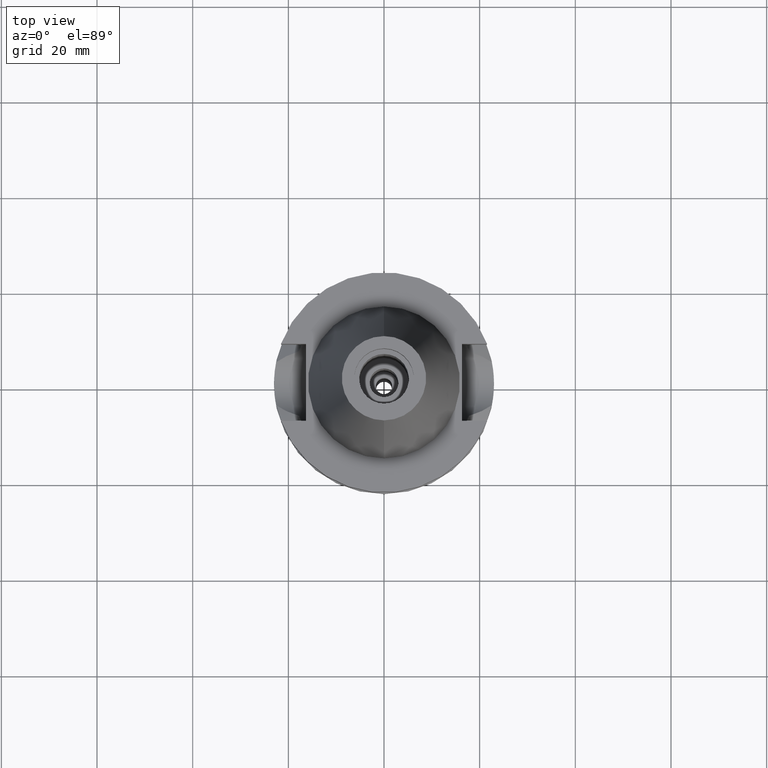
[diagram: clean part render]
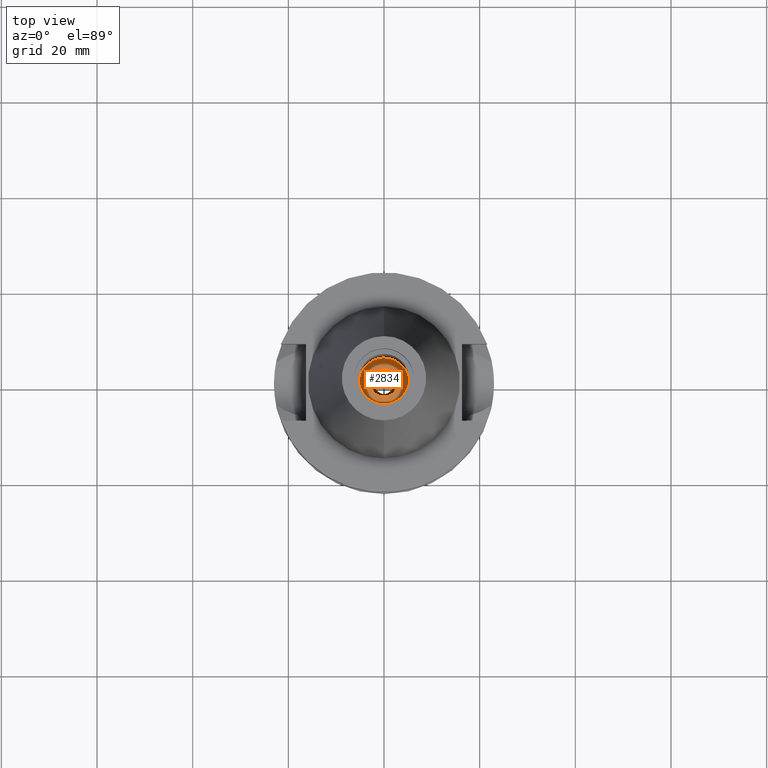
[diagram: same view with one face highlighted and labeled with its STEP entity id]
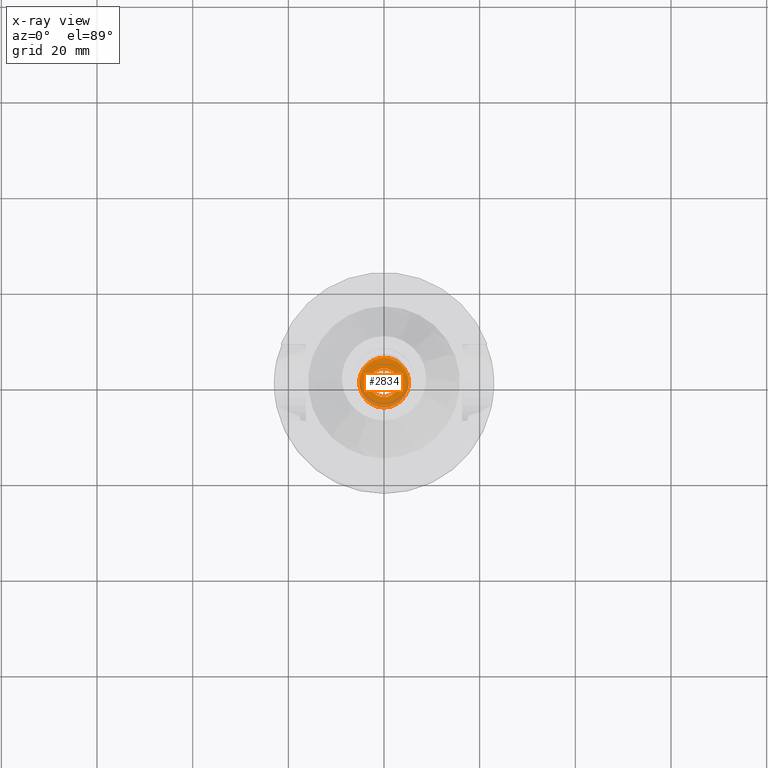
[diagram: x-ray of the same camera — body ghosted, the highlighted face saturated]
A machine part, top view. The second image highlights one B-rep face of the part: STEP entity #2834.
The next image is the same camera in x-ray: the body ghosted, the highlighted face saturated — about 15% of this face is hidden behind the body in this view.
In plain terms, the highlighted planar face has unit normal (0, 0, -1).
Its self-contained STEP definition (entity closure, byte-faithful):
#1 = ORIENTED_EDGE ( 'NONE', *, *, #1174, .F. ) ;
#12 = CIRCLE ( 'NONE', #736, 3.000000000000000000 ) ;
#42 = VERTEX_POINT ( 'NONE', #467 ) ;
#104 = CIRCLE ( 'NONE', #1768, 5.200000000000000178 ) ;
#115 = VERTEX_POINT ( 'NONE', #1660 ) ;
#217 = DIRECTION ( 'NONE',  ( 0.0000000000000000000, 1.000000000000000000, 0.0000000000000000000 ) ) ;
#233 = DIRECTION ( 'NONE',  ( 0.0000000000000000000, -1.000000000000000000, 0.0000000000000000000 ) ) ;
#250 = AXIS2_PLACEMENT_3D ( 'NONE', #1837, #915, #1869 ) ;
#263 = DIRECTION ( 'NONE',  ( 0.0000000000000000000, 0.0000000000000000000, 1.000000000000000000 ) ) ;
#265 = EDGE_CURVE ( 'NONE', #115, #1786, #104, .T. ) ;
#467 = CARTESIAN_POINT ( 'NONE',  ( 0.0000000000000000000, -3.000000000000000000, -6.599999999999999645 ) ) ;
#533 = CIRCLE ( 'NONE', #1004, 5.200000000000000178 ) ;
#705 = FACE_BOUND ( 'NONE', #1366, .T. ) ;
#736 = AXIS2_PLACEMENT_3D ( 'NONE', #942, #1402, #233 ) ;
#761 = DIRECTION ( 'NONE',  ( 0.0000000000000000000, 0.0000000000000000000, -1.000000000000000000 ) ) ;
#911 = AXIS2_PLACEMENT_3D ( 'NONE', #2718, #263, #217 ) ;
#915 = DIRECTION ( 'NONE',  ( 0.0000000000000000000, 0.0000000000000000000, -1.000000000000000000 ) ) ;
#942 = CARTESIAN_POINT ( 'NONE',  ( 0.0000000000000000000, 1.899855811856999906E-14, -6.599999999999999645 ) ) ;
#986 = DIRECTION ( 'NONE',  ( 0.0000000000000000000, 1.000000000000000000, 0.0000000000000000000 ) ) ;
#1004 = AXIS2_PLACEMENT_3D ( 'NONE', #1428, #2341, #986 ) ;
#1055 = CARTESIAN_POINT ( 'NONE',  ( 0.0000000000000000000, 3.000000000000000000, -6.599999999999999645 ) ) ;
#1174 = EDGE_CURVE ( 'NONE', #1589, #42, #2796, .T. ) ;
#1179 = EDGE_LOOP ( 'NONE', ( #2467, #1618 ) ) ;
#1315 = ORIENTED_EDGE ( 'NONE', *, *, #2916, .F. ) ;
#1366 = EDGE_LOOP ( 'NONE', ( #1, #1315 ) ) ;
#1402 = DIRECTION ( 'NONE',  ( 0.0000000000000000000, 0.0000000000000000000, 1.000000000000000000 ) ) ;
#1416 = EDGE_CURVE ( 'NONE', #1786, #115, #533, .T. ) ;
#1428 = CARTESIAN_POINT ( 'NONE',  ( 0.0000000000000000000, 1.899855811856999906E-14, -6.599999999999999645 ) ) ;
#1589 = VERTEX_POINT ( 'NONE', #1055 ) ;
#1618 = ORIENTED_EDGE ( 'NONE', *, *, #265, .F. ) ;
#1660 = CARTESIAN_POINT ( 'NONE',  ( 0.0000000000000000000, -5.200000000000000178, -6.599999999999999645 ) ) ;
#1768 = AXIS2_PLACEMENT_3D ( 'NONE', #1881, #761, #2771 ) ;
#1786 = VERTEX_POINT ( 'NONE', #1809 ) ;
#1802 = FACE_OUTER_BOUND ( 'NONE', #1179, .T. ) ;
#1809 = CARTESIAN_POINT ( 'NONE',  ( 0.0000000000000000000, 5.200000000000000178, -6.599999999999999645 ) ) ;
#1837 = CARTESIAN_POINT ( 'NONE',  ( 0.0000000000000000000, 1.143820110403999983E-14, -6.599999999999999645 ) ) ;
#1869 = DIRECTION ( 'NONE',  ( 0.0000000000000000000, -1.000000000000000000, 0.0000000000000000000 ) ) ;
#1881 = CARTESIAN_POINT ( 'NONE',  ( 0.0000000000000000000, 1.899855811856999906E-14, -6.599999999999999645 ) ) ;
#2341 = DIRECTION ( 'NONE',  ( 0.0000000000000000000, 0.0000000000000000000, -1.000000000000000000 ) ) ;
#2467 = ORIENTED_EDGE ( 'NONE', *, *, #1416, .F. ) ;
#2718 = CARTESIAN_POINT ( 'NONE',  ( 0.0000000000000000000, 1.899855811856999906E-14, -6.599999999999999645 ) ) ;
#2771 = DIRECTION ( 'NONE',  ( 0.0000000000000000000, -1.000000000000000000, 0.0000000000000000000 ) ) ;
#2796 = CIRCLE ( 'NONE', #911, 3.000000000000000000 ) ;
#2834 = ADVANCED_FACE ( 'NONE', ( #1802, #705 ), #2936, .F. ) ;
#2916 = EDGE_CURVE ( 'NONE', #42, #1589, #12, .T. ) ;
#2936 = PLANE ( 'NONE',  #250 ) ;